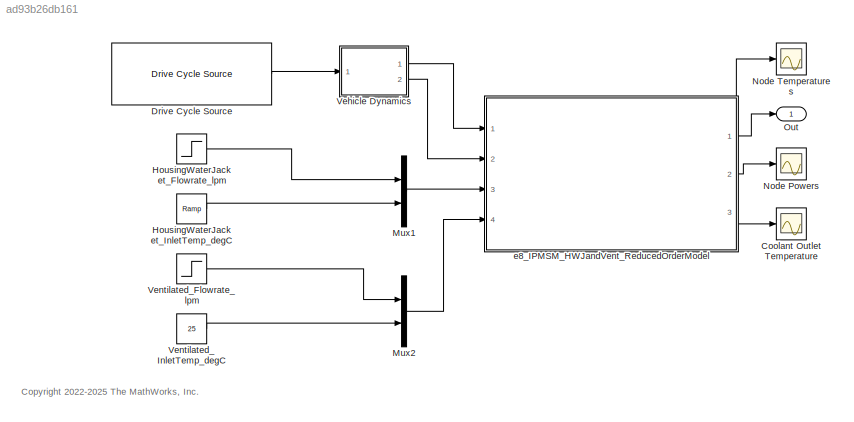
MODEL slx_ad93b26db161
KIND model
CONFIG AbsTol = 1e-3
CONFIG EnableMultiTasking = off
CONFIG FixedStep = 1e-2
CONFIG MaxStep = auto
CONFIG MinStep = auto
CONFIG RelTol = 1e-3
CONFIG SampleTimeConstraint = Unconstrained
CONFIG SolverName = VariableStepAuto
CONFIG StartTime = 0.0
CONFIG StopTime = 2474
WORKSPACE source: mxarray member
WORKSPACE AdjacencyMat = [0 0 0 0 0 0 0 0 0 0 0 0 ... (15129 elements, 123x123)]
WORKSPACE Banding_Loss_Mat = [0 0 0 0 0 0 0 0 0 0 0 0 ... (2340 elements, 39x60)]
WORKSPACE CapMat = [1e+20 2196.70091586 387.653102799 193.8265514 1962.34710525 387.653102799 193.8265514 1962.34710525 1266.59353814 268.053957132 416.539515956 175.715078 ... (123 elements, 123x1)]
WORKSPACE CoolantArrayIdxs = [20 21 22 23 24 25 26 27 35 36 37 84 ... (19 elements, 19x1)]
WORKSPACE Friction_Loss_Mat = [0 0 0 0 0 0 0 0 0 0 0 0 ... (2340 elements, 39x60)]
WORKSPACE InletCoolIdxs = [37 38]
WORKSPACE Iron_Loss_Rotor_Back_Iron_Mat = [0.0117705351991 0.0198175800092 0.0246057415963 0.0256631766661 0.0240576767285 0.0207771722396 0.0168311502834 0.0133395315761 0.0115512538142 0.0120779594768 0.0143067244555 0.0171516443454 ... (2340 elements, 39x60)]
WORKSPACE Iron_Loss_Rotor_Pole_Mat = [1.45649756865 1.4525095653 1.42942652973 1.39109338754 1.34251579982 1.287439524 1.22885659237 1.16930852698 1.11098913093 1.05484056893 0.999976048068 0.944563732162 ... (2340 elements, 39x60)]
WORKSPACE Iron_Loss_Rotor_Tooth_Mat = [0 0 0 0 0 0 0 0 0 0 0 0 ... (2340 elements, 39x60)]
WORKSPACE Iron_Loss_Stator_Back_Iron_Mat = [38.5419456951 37.774471759 36.7837540443 35.6885758764 34.5272571596 33.3324529178 32.136302555 30.9744032473 29.8863157372 28.879068819 27.8876078248 26.8074662049 ... (2340 elements, 39x60)]
WORKSPACE Iron_Loss_Stator_Tooth_Mat = [42.0610884508 41.0604961882 40.1804594162 39.4285940164 38.704339026 37.9602455604 37.1844153901 36.3902226975 35.6050857317 34.8287245624 34.0007237876 33.0439458619 ... (2340 elements, 39x60)]
WORKSPACE LossDistrForEachType = [0 0 0 0 0 0 0 0 0 0 0 0 ... (2952 elements, 24x123)]
WORKSPACE Magnet_Loss_Mat = [0.0995193918038 0.0928899922278 0.0868628846748 0.0818830115456 0.0774722500184 0.0732395922727 0.0687988836096 0.0636930921801 0.057350395967 0.049600030094 0.0410757744075 0.0326817704515 ... (2340 elements, 39x60)]
WORKSPACE OutletCoolIdxs = [20 107]
WORKSPACE ResMat = [0 2.49009256841 6.64572241429 1000000000 1.39790968864 6.64402802995 1000000000 1.39156082742 1000000000 1000000000 1000000000 1000000000 ... (15129 elements, 123x123)]
WORKSPACE RotorCopperTempCoefResistivity = 0.00393
WORKSPACE Rotor_Cage_Loss_Mat = [0 0 0 0 0 0 0 0 0 0 0 0 ... (2340 elements, 39x60)]
WORKSPACE ShaftTorqueVec = [-287.262157301 -272.268610731 -257.275064161 -242.281517591 -227.287971021 -212.294424451 -197.300877881 -182.307331311 -167.31378474 -152.32023817 -137.3266916 -122.33314503 ... (39 elements, 1x39)]
WORKSPACE Sig: Simulink.Signal (value not decoded)
WORKSPACE Sleeve_Loss_Mat = [0 0 0 0 0 0 0 0 0 0 0 0 ... (2340 elements, 39x60)]
WORKSPACE SpeedVec = [500 661.016949153 822.033898305 983.050847458 1144.06779661 1305.08474576 1466.10169492 1627.11864407 1788.13559322 1949.15254237 2110.16949153 2271.18644068 ... (60 elements, 1x60)]
WORKSPACE StateSpaceND: object (value not decoded)
WORKSPACE StatorCopperTempCoefResistivity = 0.00393
WORKSPACE Stator_Copper_Loss_AC_Mat = [0 0 0 0 0 0 0 0 0 0 0 0 ... (2340 elements, 39x60)]
WORKSPACE Stator_Copper_Loss_Mat = [3925.33912093 3510.19452231 3089.33767218 2711.80000483 2370.99356953 2062.06508217 1781.35176729 1526.02799256 1293.87708107 1083.15658151 892.545254302 720.809889245 ... (2340 elements, 39x60)]
WORKSPACE Stray_Load_Loss_Mat = [0 0 0 0 0 0 0 0 0 0 0 0 ... (2340 elements, 39x60)]
WORKSPACE Stray_Loss_Stator_Iron_Proportion = 0.95
WORKSPACE Tgiven = 20
WORKSPACE TnodesInit = [25 25 25 25 25 25 25 25 25 25 25 25 ... (123 elements, 123x1)]
WORKSPACE TrefRotor = 20
WORKSPACE TrefStator = 20
WORKSPACE Windage_Loss_Mat = [0 0 0 0 0 0 0 0 0 0 0 0 ... (2340 elements, 39x60)]
BLOCK [Scope] Coolant Outlet Temperature
  Floating = off
  NumInputPorts = 1
  Ports = [1]
  ScopeSpecificationString = Simulink.scopes.TimeScopeBlockCfg('CurrentConfiguration', extmgr.ConfigurationSet(extmgr.Configuration('Core','General UI',true),extmgr.Configuration('Core','Source UI',true),extmgr.Configuration('Sources','WiredSimulink',true),extmgr.Configuration('Visuals','Time Domain',true,'SerializedDisplays',{struct('MinYLimReal','21.4904','MaxYLimReal','56.58636','YLabelReal','','MinYLimMag','21.4904','MaxY...<+1437ch>
BLOCK [Reference] Drive Cycle Source  REF=autolibshared/Drive Cycle Source
  AttributesFormatString = %<cycleVar> (%<tfinal>)
  Ports = [0, 1]
  SourceBlock = autolibshared/Drive Cycle Source
  SourceProductBaseCode = PW,DR,MT,UV,VE
  SourceType = Drive Cycle Source
BLOCK [Step] HousingWaterJacket_Flowrate_lpm
  After = 3
  Before = 1
  SampleTime = 0
  Time = 1000
BLOCK [Reference] HousingWaterJacket_InletTemp_degC  REF=simulink/Sources/Ramp
  Ports = [0, 1]
  SourceBlock = simulink/Sources/Ramp
  SourceProductBaseCode = SL
  SourceType = Ramp
BLOCK [Mux] Mux1
  DisplayOption = bar
  Inputs = 2
  Ports = [2, 1]
BLOCK [Mux] Mux2
  DisplayOption = bar
  Inputs = 2
  Ports = [2, 1]
BLOCK [Scope] Node Powers
  Floating = off
  NumInputPorts = 1
  Ports = [1]
  ScopeSpecificationString = Simulink.scopes.TimeScopeBlockCfg
BLOCK [Scope] Node Temperatures
  Floating = off
  NumInputPorts = 1
  Ports = [1]
  ScopeSpecificationString = Simulink.scopes.TimeScopeBlockCfg('CurrentConfiguration', extmgr.ConfigurationSet(extmgr.Configuration('Core','General UI',true),extmgr.Configuration('Core','Source UI',true),extmgr.Configuration('Sources','WiredSimulink',true),extmgr.Configuration('Visuals','Time Domain',true,'SerializedDisplays',{struct('MinYLimReal','21.24565','MaxYLimReal','58.75048','YLabelReal','','MinYLimMag','21.24565','Ma...<+1406ch>
BLOCK [Outport] Out
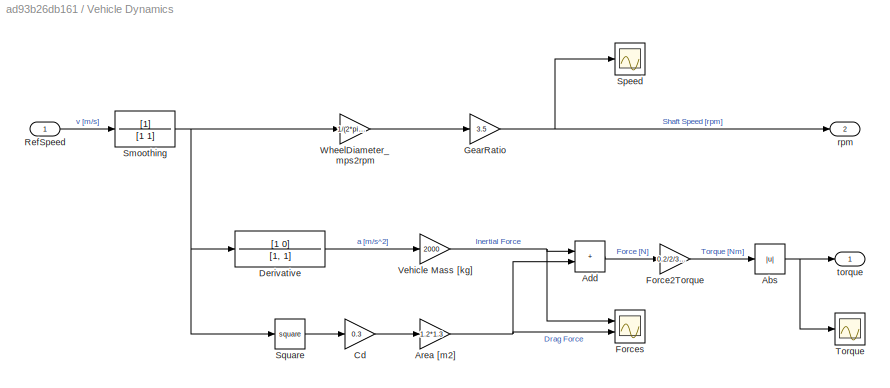
BLOCK [SubSystem] Vehicle Dynamics
  Ports = [1, 2]
  RequestExecContextInheritance = off
BLOCK [Abs] Vehicle Dynamics/Abs
  SaturateOnIntegerOverflow = off
BLOCK [Sum] Vehicle Dynamics/Add
  IconShape = rectangular
  Ports = [2, 1]
BLOCK [Gain] Vehicle Dynamics/Area [m2]
  Gain = 1.2*1.3
BLOCK [Gain] Vehicle Dynamics/Cd
  Gain = 0.3
BLOCK [TransferFcn] Vehicle Dynamics/Derivative
  Denominator = [1, 1]
  Numerator = [1 0]
BLOCK [Gain] Vehicle Dynamics/Force2Torque
  Gain = 0.2/2/3.5
BLOCK [Scope] Vehicle Dynamics/Forces
  Floating = off
  NumInputPorts = 2
  Ports = [2]
  ScopeSpecificationString = Simulink.scopes.TimeScopeBlockCfg('CurrentConfiguration', extmgr.ConfigurationSet(extmgr.Configuration('Core','General UI',true),extmgr.Configuration('Core','Source UI',true),extmgr.Configuration('Sources','WiredSimulink',true,'DataLoggingVariableName','ScopeData2'),extmgr.Configuration('Visuals','Time Domain',true,'SerializedDisplays',{struct('MinYLimReal','-1.00000','MaxYLimReal','1.00000','YLab...<+1441ch>
BLOCK [Gain] Vehicle Dynamics/GearRatio
  Gain = 3.5
BLOCK [Inport] Vehicle Dynamics/RefSpeed
BLOCK [TransferFcn] Vehicle Dynamics/Smoothing
  Denominator = [1 1]
BLOCK [Scope] Vehicle Dynamics/Speed
  Floating = off
  NumInputPorts = 1
  Ports = [1]
  ScopeSpecificationString = Simulink.scopes.TimeScopeBlockCfg('CurrentConfiguration', extmgr.ConfigurationSet(extmgr.Configuration('Core','General UI',true),extmgr.Configuration('Core','Source UI',true),extmgr.Configuration('Sources','WiredSimulink',true,'DataLoggingVariableName','ScopeData1'),extmgr.Configuration('Visuals','Time Domain',true,'SerializedDisplays',{struct('MinYLimReal','-528.97626','MaxYLimReal','4760.7863','...<+1445ch>
BLOCK [Math] Vehicle Dynamics/Square
  Operator = square
  Ports = [1, 1]
BLOCK [Scope] Vehicle Dynamics/Torque
  Floating = off
  NumInputPorts = 1
  Ports = [1]
  ScopeSpecificationString = Simulink.scopes.TimeScopeBlockCfg('CurrentConfiguration', extmgr.ConfigurationSet(extmgr.Configuration('Core','General UI',true),extmgr.Configuration('Core','Source UI',true),extmgr.Configuration('Sources','WiredSimulink',true,'DataLoggingVariableName','ScopeData3'),extmgr.Configuration('Visuals','Time Domain',true,'SerializedDisplays',{struct('MinYLimReal','-10.6837','MaxYLimReal','96.15329','YLa...<+1454ch>
BLOCK [Gain] Vehicle Dynamics/Vehicle Mass [kg]
  Gain = 2000
BLOCK [Gain] Vehicle Dynamics/WheelDiameter_mps2rpm
  Gain = 1/(2*pi*0.4/2)*60
BLOCK [Outport] Vehicle Dynamics/rpm
  Port = 2
BLOCK [Outport] Vehicle Dynamics/torque
BLOCK [Step] Ventilated_Flowrate_lpm
  After = 7
  Before = 2.5
  SampleTime = 0
  Time = 1500
BLOCK [Constant] Ventilated_InletTemp_degC
  Value = 25
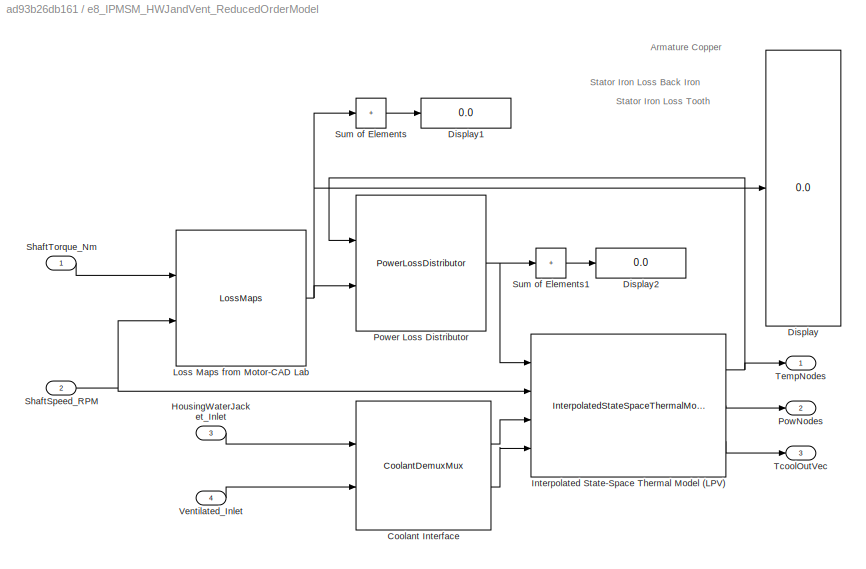
BLOCK [SubSystem] e8_IPMSM_HWJandVent_ReducedOrderModel
  Ports = [4, 3]
  RequestExecContextInheritance = off
BLOCK [Reference] e8_IPMSM_HWJandVent_ReducedOrderModel/Coolant Interface  REF=mcadROM_lib/CoolantDemuxMux
  Ports = [2, 2]
  SourceBlock = mcadROM_lib/CoolantDemuxMux
BLOCK [Display] e8_IPMSM_HWJandVent_ReducedOrderModel/Display
  Decimation = 1
  Ports = [1]
BLOCK [Display] e8_IPMSM_HWJandVent_ReducedOrderModel/Display1
  Decimation = 1
  Ports = [1]
BLOCK [Display] e8_IPMSM_HWJandVent_ReducedOrderModel/Display2
  Decimation = 1
  Ports = [1]
BLOCK [Inport] e8_IPMSM_HWJandVent_ReducedOrderModel/HousingWaterJacket_Inlet
  Port = 3
BLOCK [Reference] e8_IPMSM_HWJandVent_ReducedOrderModel/Interpolated State-Space Thermal Model (LPV)  REF=mcadROM_lib/InterpolatedStateSpaceThermalModel (LPV)
  Ports = [4, 3]
  SourceBlock = mcadROM_lib/InterpolatedStateSpaceThermalModel (LPV)
BLOCK [Reference] e8_IPMSM_HWJandVent_ReducedOrderModel/Loss Maps from Motor-CAD Lab  REF=mcadROM_lib/LossMaps
  Ports = [2, 1]
  SourceBlock = mcadROM_lib/LossMaps
BLOCK [Outport] e8_IPMSM_HWJandVent_ReducedOrderModel/PowNodes
  Port = 2
BLOCK [Reference] e8_IPMSM_HWJandVent_ReducedOrderModel/Power Loss Distributor  REF=mcadROM_lib/PowerLossDistributor
  Ports = [2, 1]
  SourceBlock = mcadROM_lib/PowerLossDistributor
BLOCK [Inport] e8_IPMSM_HWJandVent_ReducedOrderModel/ShaftSpeed_RPM
  Port = 2
BLOCK [Inport] e8_IPMSM_HWJandVent_ReducedOrderModel/ShaftTorque_Nm
BLOCK [Sum] e8_IPMSM_HWJandVent_ReducedOrderModel/Sum of Elements
  IconShape = rectangular
  Inputs = +
  Ports = [1, 1]
BLOCK [Sum] e8_IPMSM_HWJandVent_ReducedOrderModel/Sum of Elements1
  IconShape = rectangular
  Inputs = +
  Ports = [1, 1]
BLOCK [Outport] e8_IPMSM_HWJandVent_ReducedOrderModel/TcoolOutVec
  Port = 3
BLOCK [Outport] e8_IPMSM_HWJandVent_ReducedOrderModel/TempNodes
BLOCK [Inport] e8_IPMSM_HWJandVent_ReducedOrderModel/Ventilated_Inlet
  Port = 4
ANNOTATION (root): <copyright redacted>
ANNOTATION e8_IPMSM_HWJandVent_ReducedOrderModel: Armature Copper
ANNOTATION e8_IPMSM_HWJandVent_ReducedOrderModel: Stator Iron Loss Back Iron
ANNOTATION e8_IPMSM_HWJandVent_ReducedOrderModel: Stator Iron Loss Tooth
LINE Drive Cycle Source:1 -> Vehicle Dynamics:1
LINE HousingWaterJacket_Flowrate_lpm:1 -> Mux1:1
LINE HousingWaterJacket_InletTemp_degC:1 -> Mux1:2
LINE Mux1:1 -> e8_IPMSM_HWJandVent_ReducedOrderModel:3
LINE Mux2:1 -> e8_IPMSM_HWJandVent_ReducedOrderModel:4
NET Vehicle Dynamics/Abs:1 -> Vehicle Dynamics/Torque:1, Vehicle Dynamics/torque:1
LINE Vehicle Dynamics/Add:1 -> Vehicle Dynamics/Force2Torque:1
NET Vehicle Dynamics/Area [m2]:1 -> Vehicle Dynamics/Add:2, Vehicle Dynamics/Forces:2
LINE Vehicle Dynamics/Cd:1 -> Vehicle Dynamics/Area [m2]:1
LINE Vehicle Dynamics/Derivative:1 -> Vehicle Dynamics/Vehicle Mass [kg]:1
LINE Vehicle Dynamics/Force2Torque:1 -> Vehicle Dynamics/Abs:1
NET Vehicle Dynamics/GearRatio:1 -> Vehicle Dynamics/Speed:1, Vehicle Dynamics/rpm:1
LINE Vehicle Dynamics/RefSpeed:1 -> Vehicle Dynamics/Smoothing:1
NET Vehicle Dynamics/Smoothing:1 -> Vehicle Dynamics/Derivative:1, Vehicle Dynamics/Square:1, Vehicle Dynamics/WheelDiameter_mps2rpm:1
LINE Vehicle Dynamics/Square:1 -> Vehicle Dynamics/Cd:1
NET Vehicle Dynamics/Vehicle Mass [kg]:1 -> Vehicle Dynamics/Add:1, Vehicle Dynamics/Forces:1
LINE Vehicle Dynamics/WheelDiameter_mps2rpm:1 -> Vehicle Dynamics/GearRatio:1
LINE Vehicle Dynamics:1 -> e8_IPMSM_HWJandVent_ReducedOrderModel:1
LINE Vehicle Dynamics:2 -> e8_IPMSM_HWJandVent_ReducedOrderModel:2
LINE Ventilated_Flowrate_lpm:1 -> Mux2:1
LINE Ventilated_InletTemp_degC:1 -> Mux2:2
LINE e8_IPMSM_HWJandVent_ReducedOrderModel/Coolant Interface:1 -> e8_IPMSM_HWJandVent_ReducedOrderModel/Interpolated State-Space Thermal Model (LPV):3
LINE e8_IPMSM_HWJandVent_ReducedOrderModel/Coolant Interface:2 -> e8_IPMSM_HWJandVent_ReducedOrderModel/Interpolated State-Space Thermal Model (LPV):4
LINE e8_IPMSM_HWJandVent_ReducedOrderModel/HousingWaterJacket_Inlet:1 -> e8_IPMSM_HWJandVent_ReducedOrderModel/Coolant Interface:1
NET e8_IPMSM_HWJandVent_ReducedOrderModel/Interpolated State-Space Thermal Model (LPV):1 -> e8_IPMSM_HWJandVent_ReducedOrderModel/Power Loss Distributor:1, e8_IPMSM_HWJandVent_ReducedOrderModel/TempNodes:1
LINE e8_IPMSM_HWJandVent_ReducedOrderModel/Interpolated State-Space Thermal Model (LPV):2 -> e8_IPMSM_HWJandVent_ReducedOrderModel/PowNodes:1
LINE e8_IPMSM_HWJandVent_ReducedOrderModel/Interpolated State-Space Thermal Model (LPV):3 -> e8_IPMSM_HWJandVent_ReducedOrderModel/TcoolOutVec:1
NET e8_IPMSM_HWJandVent_ReducedOrderModel/Loss Maps from Motor-CAD Lab:1 -> e8_IPMSM_HWJandVent_ReducedOrderModel/Display:1, e8_IPMSM_HWJandVent_ReducedOrderModel/Power Loss Distributor:2, e8_IPMSM_HWJandVent_ReducedOrderModel/Sum of Elements:1
NET e8_IPMSM_HWJandVent_ReducedOrderModel/Power Loss Distributor:1 -> e8_IPMSM_HWJandVent_ReducedOrderModel/Interpolated State-Space Thermal Model (LPV):1, e8_IPMSM_HWJandVent_ReducedOrderModel/Sum of Elements1:1
NET e8_IPMSM_HWJandVent_ReducedOrderModel/ShaftSpeed_RPM:1 -> e8_IPMSM_HWJandVent_ReducedOrderModel/Interpolated State-Space Thermal Model (LPV):2, e8_IPMSM_HWJandVent_ReducedOrderModel/Loss Maps from Motor-CAD Lab:2
LINE e8_IPMSM_HWJandVent_ReducedOrderModel/ShaftTorque_Nm:1 -> e8_IPMSM_HWJandVent_ReducedOrderModel/Loss Maps from Motor-CAD Lab:1
LINE e8_IPMSM_HWJandVent_ReducedOrderModel/Sum of Elements1:1 -> e8_IPMSM_HWJandVent_ReducedOrderModel/Display2:1
LINE e8_IPMSM_HWJandVent_ReducedOrderModel/Sum of Elements:1 -> e8_IPMSM_HWJandVent_ReducedOrderModel/Display1:1
LINE e8_IPMSM_HWJandVent_ReducedOrderModel/Ventilated_Inlet:1 -> e8_IPMSM_HWJandVent_ReducedOrderModel/Coolant Interface:2
NET e8_IPMSM_HWJandVent_ReducedOrderModel:1 -> Node Temperatures:1, Out:1
LINE e8_IPMSM_HWJandVent_ReducedOrderModel:2 -> Node Powers:1
LINE e8_IPMSM_HWJandVent_ReducedOrderModel:3 -> Coolant Outlet Temperature:1
note: NET lines group one-source signal fan-out (src -> all destinations, sorted); 1:1 wires keep LINE
